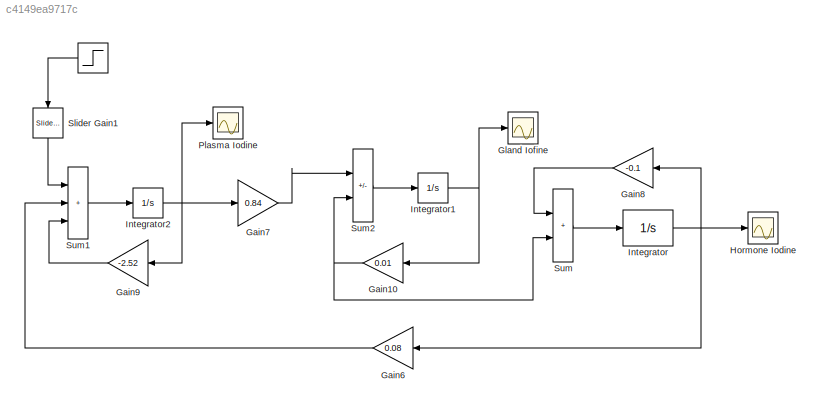
MODEL slx_c4149ea9717c
KIND model
CONFIG AbsTol = auto
CONFIG EnableMultiTasking = off
CONFIG FixedStep = auto
CONFIG MaxStep = auto
CONFIG MinStep = auto
CONFIG RelTol = 1e-3
CONFIG SampleTimeConstraint = Unconstrained
CONFIG SolverName = VariableStepAuto
CONFIG StartTime = 0.0
CONFIG StopTime = 300.0
BLOCK [Step]  
  After = 15
  SampleTime = 0
  Time = 0
BLOCK [Gain] Gain10
  Gain = 0.01
BLOCK [Gain] Gain6
  Gain = 0.08
BLOCK [Gain] Gain7
  Gain = 0.84
BLOCK [Gain] Gain8
  Gain = -0.1
BLOCK [Gain] Gain9
  Gain = -2.52
BLOCK [Scope] Gland Iofine
  Floating = off
  NumInputPorts = 1
  Ports = [1]
  ScopeSpecificationString = Simulink.scopes.TimeScopeBlockCfg('CurrentConfiguration', extmgr.ConfigurationSet(extmgr.Configuration('Core','General UI',true),extmgr.Configuration('Core','Source UI',true),extmgr.Configuration('Sources','WiredSimulink',true,'DataLoggingVariableName','ScopeData3','DataLoggingLimitDataPoints',true),extmgr.Configuration('Visuals','Time Domain',true,'SerializedDisplays',{struct('MinYLimReal','730.5...<+1482ch>
BLOCK [Scope] Hormone Iodine
  Floating = off
  NumInputPorts = 1
  Ports = [1]
  ScopeSpecificationString = Simulink.scopes.TimeScopeBlockCfg('CurrentConfiguration', extmgr.ConfigurationSet(extmgr.Configuration('Core','General UI',true),extmgr.Configuration('Core','Source UI',true),extmgr.Configuration('Sources','WiredSimulink',true,'DataLoggingVariableName','ScopeData4','DataLoggingLimitDataPoints',true),extmgr.Configuration('Visuals','Time Domain',true,'SerializedDisplays',{struct('MinYLimReal','79.32...<+1473ch>
BLOCK [Integrator] Integrator
  InitialCondition = 682
  Ports = [1, 1]
BLOCK [Integrator] Integrator1
  InitialCondition = 6821
  Ports = [1, 1]
BLOCK [Integrator] Integrator2
  InitialCondition = 81.2
  Ports = [1, 1]
BLOCK [Scope] Plasma Iodine
  Floating = off
  NumInputPorts = 1
  Ports = [1]
  ScopeSpecificationString = Simulink.scopes.TimeScopeBlockCfg('CurrentConfiguration', extmgr.ConfigurationSet(extmgr.Configuration('Core','General UI',true),extmgr.Configuration('Core','Source UI',true),extmgr.Configuration('Sources','WiredSimulink',true,'DataLoggingVariableName','ScopeData5'),extmgr.Configuration('Visuals','Time Domain',true,'SerializedDisplays',{struct('MinYLimReal','1.80546','MaxYLimReal','90.02162','YLab...<+1401ch>
BLOCK [Reference] Slider Gain1  REF=simulink/Math
Operations/Slider
Gain
  NameLocation = left
  Ports = [1, 1]
  SourceBlock = simulink/Math\nOperations/Slider\nGain
  SourceProductBaseCode = SL
  SourceType = Slider Gain
BLOCK [Sum] Sum
  IconShape = rectangular
  Ports = [2, 1]
BLOCK [Sum] Sum1
  IconShape = rectangular
  Inputs = +++
  Ports = [3, 1]
BLOCK [Sum] Sum2
  IconShape = rectangular
  Inputs = +-
  Ports = [2, 1]
LINE  :1 -> Slider Gain1:1
NET Gain10:1 -> Sum2:2, Sum:2
LINE Gain6:1 -> Sum1:2
LINE Gain7:1 -> Sum2:1
LINE Gain8:1 -> Sum:1
LINE Gain9:1 -> Sum1:3
NET Integrator1:1 -> Gain10:1, Gland Iofine:1
NET Integrator2:1 -> Gain7:1, Gain9:1, Plasma Iodine:1
NET Integrator:1 -> Gain6:1, Gain8:1, Hormone Iodine:1
LINE Slider Gain1:1 -> Sum1:1
LINE Sum1:1 -> Integrator2:1
LINE Sum2:1 -> Integrator1:1
LINE Sum:1 -> Integrator:1
note: NET lines group one-source signal fan-out (src -> all destinations, sorted); 1:1 wires keep LINE
